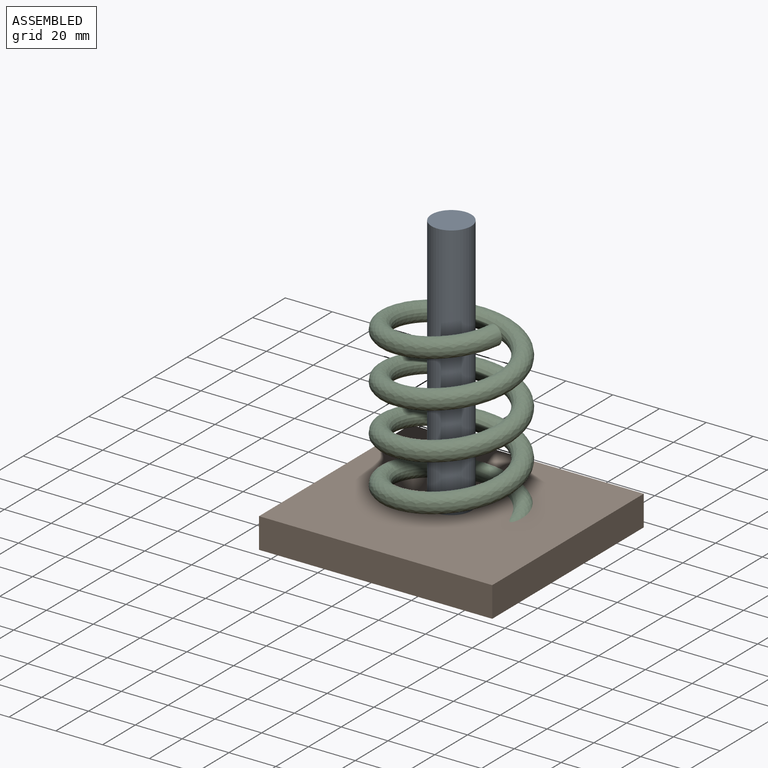
[diagram: assembled view]
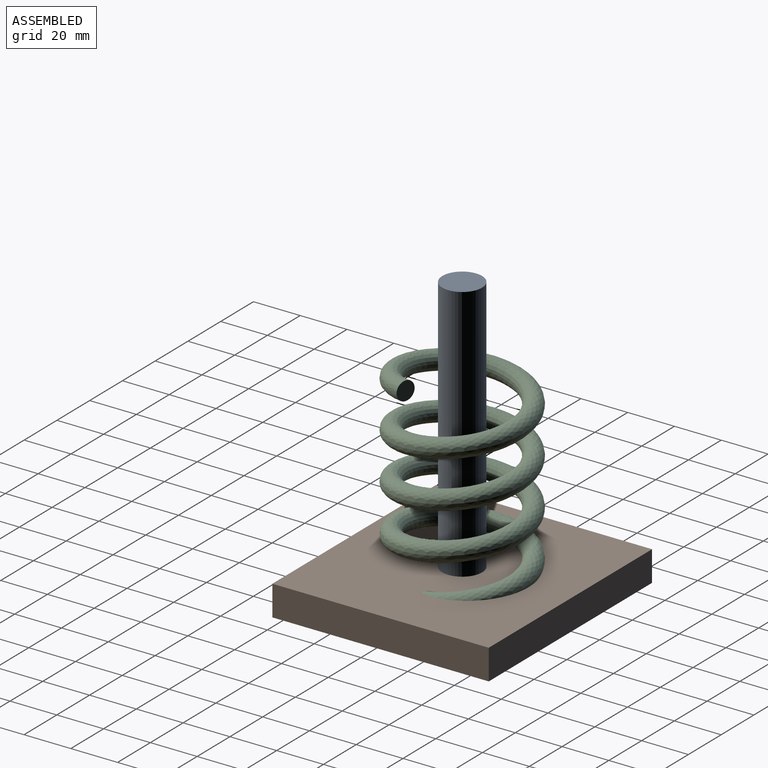
[diagram: assembled view, second angle]
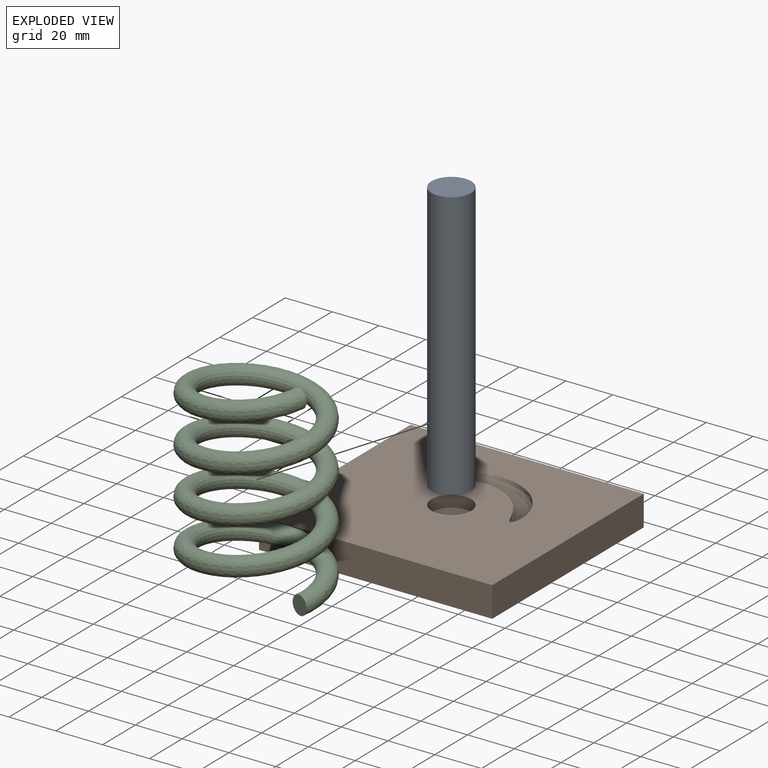
[diagram: exploded view]
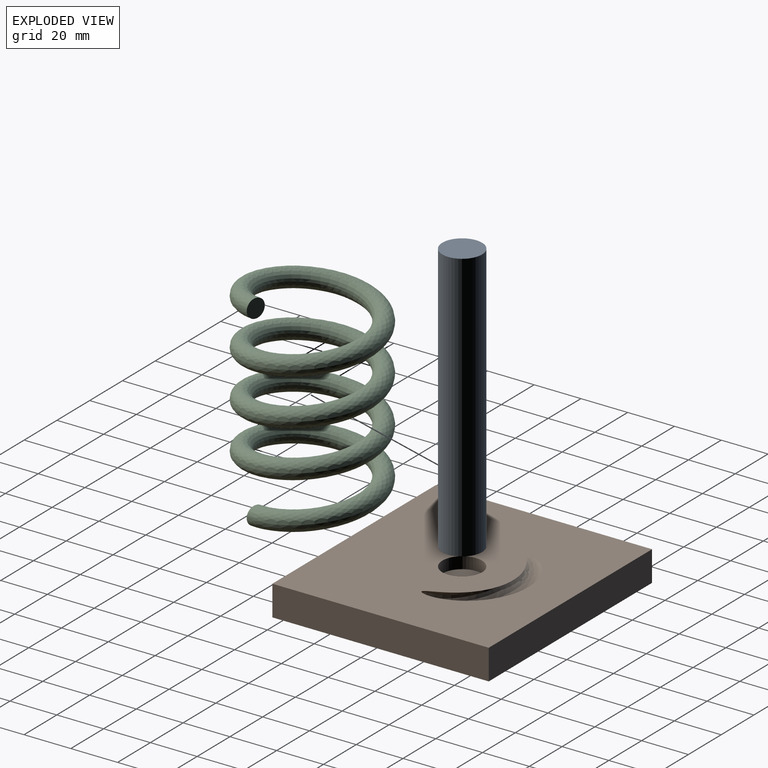
[diagram: exploded view, second angle]
ASSEMBLY  parts=3 mates=2
PART A: 3 faces, bbox 17x17x115 mm
  f0: cylinder r=8.5mm len=115mm, axis (0,0,-1), area 6141.8mm2, adj f1,f2
  f1: plane 17x17mm, normal (0,0,1), area 227mm2, adj f0
  f2: plane 17x17mm, normal (0,0,-1), area 227mm2, adj f0
PART B: 10 faces, bbox 100.8x93.6x22.1 mm
  f0: plane 92.52x13mm, normal (1,0,0), area 1202.7mm2, adj f1,f3,f4,f5
  f1: plane 99.71x13mm, normal (0,1,0), area 1296.2mm2, adj f0,f2,f4,f5
  f2: plane 92.52x13mm, normal (-1,0,0), area 1202.7mm2, adj f1,f3,f4,f5
  f3: plane 99.71x13mm, normal (0,-1,0), area 1296.2mm2, adj f0,f2,f4,f5
  f4: plane 99.71x92.52mm, normal (0,0,-1), area 9224.5mm2, adj f0,f1,f2,f3
  f5: plane 99.71x92.52mm, normal (0,0,1), area 8638.3mm2, adj f0,f1,f2,f3,f7,f8
  f6: plane 9.11x8.74mm, normal (0.3,0.95,0), area 50.3mm2, adj f7
  f7: bspline ~52.54x37.66mm, area 1011.5mm2, adj f5,f6
  f8: cylinder r=8.5mm len=17mm, axis (0,0,-1), area 267mm2, adj f5,f9
  f9: plane 17x17mm, normal (0,0,1), area 227mm2, adj f8
PART C: 3 faces, bbox 61x58.2x96 mm
  f0: plane 8x7.63mm, normal (-0.3,-0.95,0), area 50.3mm2, adj f2
  f1: plane 8x7.63mm, normal (0.3,0.95,0), area 50.3mm2, adj f2
  f2: bspline ~96x60.98mm, area 15766.1mm2, adj f0,f1
PLACE A t=(-54.52,-34.86,-3.57)mm
PLACE B t=(-54.52,-34.86,-3.57)mm fixed
PLACE C t=(-54.52,-34.86,-3.57)mm
MATE fastened B.f8 <-> A.f0  axis (0,0,1) through (-54.52,-34.86,-3.57)mm
MATE fastened B.f6 <-> C.f0  axis (0.3,0.95,0) through (-30.68,-42.37,-3.57)mm
